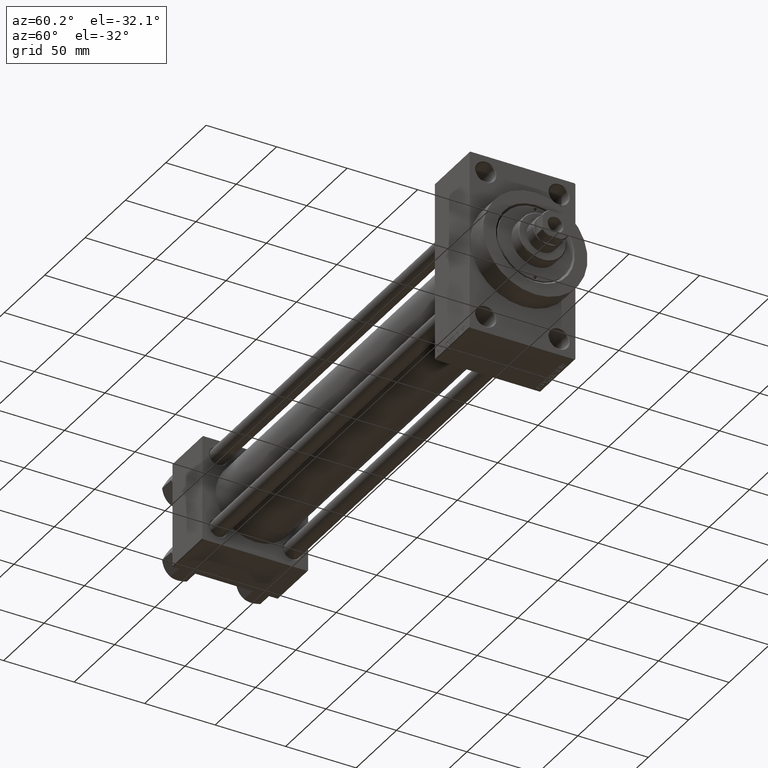
[diagram: clean part render]
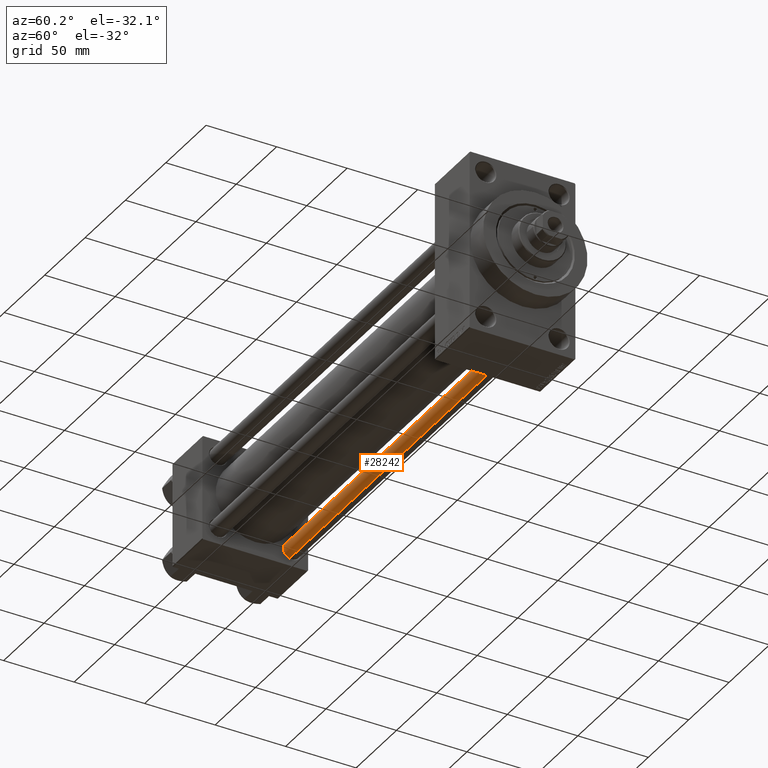
[diagram: same view with one face highlighted and labeled with its STEP entity id]
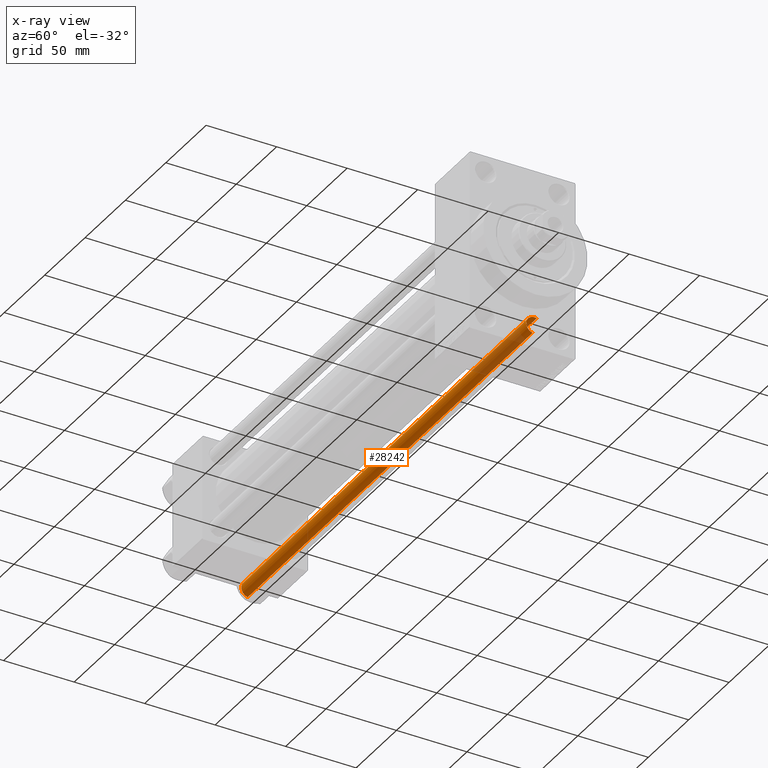
[diagram: x-ray of the same camera — body ghosted, the highlighted face saturated]
A machine part, auxiliary view. The second image highlights one B-rep face of the part: STEP entity #28242.
The next image is the same camera in x-ray: the body ghosted, the highlighted face saturated — about 15% of this face is hidden behind the body in this view.
In plain terms, the highlighted cylindrical surface (edge-blend (fillet) strip) has radius 6 mm, axis along (1, -0, 0).
Its self-contained STEP definition (entity closure, byte-faithful):
#912 = DIRECTION ( 'NONE',  ( -0.000000000000000000, -0.000000000000000000, -1.000000000000000000 ) ) ;
#935 = AXIS2_PLACEMENT_3D ( 'NONE', #15705, #26958, #27422 ) ;
#1712 = CARTESIAN_POINT ( 'NONE',  ( -6.000000000000000888, 0.000000000000000000, 354.0000000000000000 ) ) ;
#2039 = ORIENTED_EDGE ( 'NONE', *, *, #24621, .T. ) ;
#2787 = DIRECTION ( 'NONE',  ( -0.000000000000000000, -0.000000000000000000, 1.000000000000000000 ) ) ;
#4819 = CARTESIAN_POINT ( 'NONE',  ( 6.000000000000000888, 7.347880794884120722E-16, 353.5000000000000000 ) ) ;
#5464 = CIRCLE ( 'NONE', #18461, 6.000000000000000888 ) ;
#6580 = ORIENTED_EDGE ( 'NONE', *, *, #14117, .T. ) ;
#6621 = DIRECTION ( 'NONE',  ( 1.000000000000000000, 0.000000000000000000, 0.000000000000000000 ) ) ;
#12201 = VERTEX_POINT ( 'NONE', #46857 ) ;
#12347 = FACE_OUTER_BOUND ( 'NONE', #35999, .T. ) ;
#14117 = EDGE_CURVE ( 'NONE', #47409, #12201, #45579, .T. ) ;
#15705 = CARTESIAN_POINT ( 'NONE',  ( 0.000000000000000000, 0.000000000000000000, 354.0000000000000000 ) ) ;
#18461 = AXIS2_PLACEMENT_3D ( 'NONE', #29142, #29378, #43539 ) ;
#19175 = VECTOR ( 'NONE', #33829, 1000.000000000000000 ) ;
#20117 = VERTEX_POINT ( 'NONE', #4819 ) ;
#22286 = VECTOR ( 'NONE', #912, 1000.000000000000000 ) ;
#24400 = EDGE_CURVE ( 'NONE', #20117, #30104, #40946, .T. ) ;
#24621 = EDGE_CURVE ( 'NONE', #20117, #47409, #5464, .T. ) ;
#25587 = CIRCLE ( 'NONE', #31715, 6.000000000000000888 ) ;
#26958 = DIRECTION ( 'NONE',  ( -0.000000000000000000, -0.000000000000000000, -1.000000000000000000 ) ) ;
#27422 = DIRECTION ( 'NONE',  ( -1.000000000000000000, 0.000000000000000000, 0.000000000000000000 ) ) ;
#27629 = ORIENTED_EDGE ( 'NONE', *, *, #24400, .F. ) ;
#28242 = ADVANCED_FACE ( 'NONE', ( #12347 ), #45421, .T. ) ;
#29142 = CARTESIAN_POINT ( 'NONE',  ( 0.000000000000000000, 0.000000000000000000, 353.5000000000000000 ) ) ;
#29378 = DIRECTION ( 'NONE',  ( 0.000000000000000000, 0.000000000000000000, -1.000000000000000000 ) ) ;
#30104 = VERTEX_POINT ( 'NONE', #33743 ) ;
#31715 = AXIS2_PLACEMENT_3D ( 'NONE', #32739, #2787, #6621 ) ;
#32739 = CARTESIAN_POINT ( 'NONE',  ( 0.000000000000000000, 0.000000000000000000, 0.5000000000000559552 ) ) ;
#33743 = CARTESIAN_POINT ( 'NONE',  ( 6.000000000000000888, 7.347880794884120722E-16, 0.5000000000000559552 ) ) ;
#33745 = CARTESIAN_POINT ( 'NONE',  ( 6.000000000000000888, 7.347880794884120722E-16, 354.0000000000000000 ) ) ;
#33829 = DIRECTION ( 'NONE',  ( -0.000000000000000000, -0.000000000000000000, -1.000000000000000000 ) ) ;
#35575 = CARTESIAN_POINT ( 'NONE',  ( -6.000000000000000888, 0.000000000000000000, 353.5000000000000000 ) ) ;
#35999 = EDGE_LOOP ( 'NONE', ( #27629, #2039, #6580, #45282 ) ) ;
#36957 = EDGE_CURVE ( 'NONE', #12201, #30104, #25587, .T. ) ;
#40946 = LINE ( 'NONE', #33745, #22286 ) ;
#43539 = DIRECTION ( 'NONE',  ( 1.000000000000000000, 0.000000000000000000, 0.000000000000000000 ) ) ;
#45282 = ORIENTED_EDGE ( 'NONE', *, *, #36957, .T. ) ;
#45421 = CYLINDRICAL_SURFACE ( 'NONE', #935, 6.000000000000000888 ) ;
#45579 = LINE ( 'NONE', #1712, #19175 ) ;
#46857 = CARTESIAN_POINT ( 'NONE',  ( -6.000000000000000888, 0.000000000000000000, 0.5000000000000559552 ) ) ;
#47409 = VERTEX_POINT ( 'NONE', #35575 ) ;